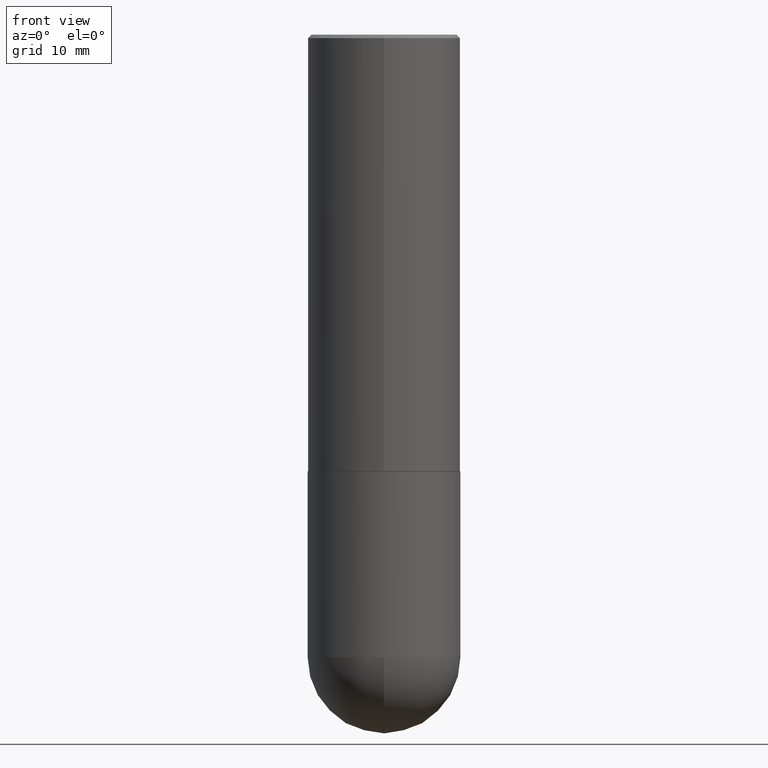
[diagram: clean part render]
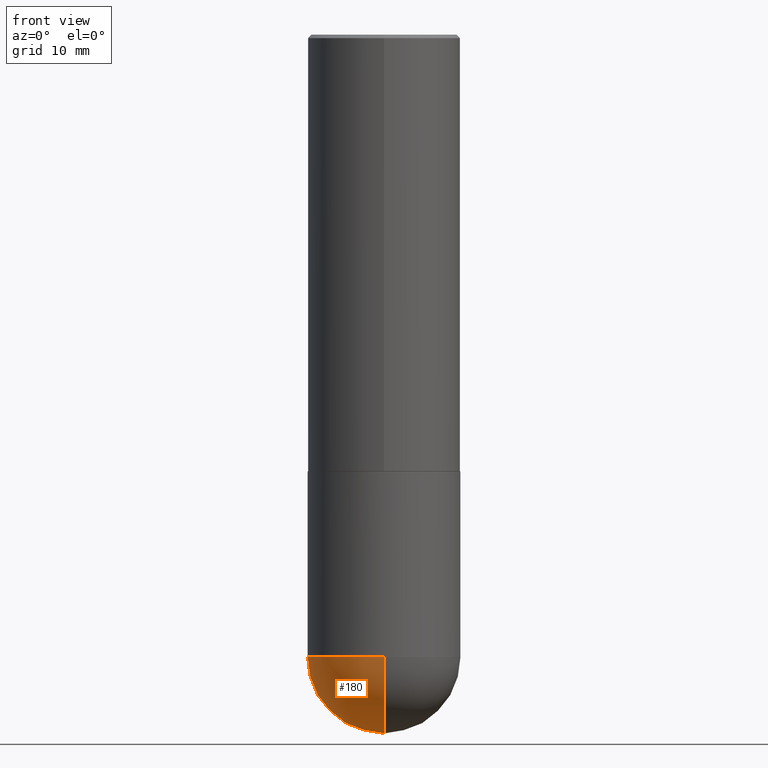
[diagram: same view with one face highlighted and labeled with its STEP entity id]
A machine part, front view. The second image highlights one B-rep face of the part: STEP entity #180.
In plain terms, the highlighted spherical surface has radius 11.1125 mm.
Its self-contained STEP definition (entity closure, byte-faithful):
#5 = EDGE_CURVE ( 'NONE', #383, #230, #282, .T. ) ;
#13 = CARTESIAN_POINT ( 'NONE',  ( 3.055046171487827277E-15, 0.4374999999999873435, -3.562500000000001776 ) ) ;
#17 = CIRCLE ( 'NONE', #56, 0.4374999999999998890 ) ;
#19 = DIRECTION ( 'NONE',  ( 6.982962677686265922E-15, 1.000000000000000000, -3.746534391310987979E-15 ) ) ;
#34 = ORIENTED_EDGE ( 'NONE', *, *, #57, .F. ) ;
#43 = AXIS2_PLACEMENT_3D ( 'NONE', #110, #231, #355 ) ;
#48 = DIRECTION ( 'NONE',  ( 1.000000000000000000, -6.982962677686265922E-15, 4.883557194083112340E-29 ) ) ;
#56 = AXIS2_PLACEMENT_3D ( 'NONE', #363, #172, #206 ) ;
#57 = EDGE_CURVE ( 'NONE', #66, #230, #174, .T. ) ;
#66 = VERTEX_POINT ( 'NONE', #168 ) ;
#70 = DIRECTION ( 'NONE',  ( -7.105427357601001070E-15, -1.000000000000000000, 0.000000000000000000 ) ) ;
#88 = EDGE_LOOP ( 'NONE', ( #292, #179, #34, #343 ) ) ;
#93 = AXIS2_PLACEMENT_3D ( 'NONE', #134, #335, #19 ) ;
#110 = CARTESIAN_POINT ( 'NONE',  ( 8.711982622034549126E-29, -1.243840226962870597E-14, -3.562500000000000000 ) ) ;
#134 = CARTESIAN_POINT ( 'NONE',  ( 8.380862844120662879E-29, -1.291258463776875784E-14, -3.562500000000000000 ) ) ;
#147 = CARTESIAN_POINT ( 'NONE',  ( 8.380862844120662879E-29, -1.291258463776875784E-14, -3.562500000000000000 ) ) ;
#168 = CARTESIAN_POINT ( 'NONE',  ( -0.4374999999999998890, -7.474928339417851874E-15, -3.562500000000000000 ) ) ;
#172 = DIRECTION ( 'NONE',  ( -2.445468806185136597E-29, 3.491481338843145583E-15, 1.000000000000000000 ) ) ;
#174 = CIRCLE ( 'NONE', #43, 0.4374999999999998890 ) ;
#177 = DIRECTION ( 'NONE',  ( 6.982962677686265922E-15, 1.000000000000000000, 0.000000000000000000 ) ) ;
#179 = ORIENTED_EDGE ( 'NONE', *, *, #5, .T. ) ;
#180 = ADVANCED_FACE ( 'NONE', ( #384 ), #304, .T. ) ;
#206 = DIRECTION ( 'NONE',  ( 1.000000000000000000, -6.982962677686265133E-15, 0.000000000000000000 ) ) ;
#209 = AXIS2_PLACEMENT_3D ( 'NONE', #147, #48, #177 ) ;
#211 = EDGE_CURVE ( 'NONE', #383, #341, #337, .T. ) ;
#230 = VERTEX_POINT ( 'NONE', #314 ) ;
#231 = DIRECTION ( 'NONE',  ( -2.445468806185136597E-29, 3.491481338843145583E-15, 1.000000000000000000 ) ) ;
#266 = DIRECTION ( 'NONE',  ( -1.000000000000000000, 7.105427357601001070E-15, -4.926315508542082329E-29 ) ) ;
#282 = CIRCLE ( 'NONE', #367, 0.4375000000000001665 ) ;
#292 = ORIENTED_EDGE ( 'NONE', *, *, #211, .F. ) ;
#304 = SPHERICAL_SURFACE ( 'NONE', #93, 0.4375000000000001665 ) ;
#305 = EDGE_CURVE ( 'NONE', #341, #66, #17, .T. ) ;
#314 = CARTESIAN_POINT ( 'NONE',  ( -3.108624468950352327E-15, -0.4375000000000127676, -3.562499999999998224 ) ) ;
#335 = DIRECTION ( 'NONE',  ( -1.000000000000000000, 6.982962677686265922E-15, -4.883557194083112340E-29 ) ) ;
#337 = CIRCLE ( 'NONE', #209, 0.4375000000000001665 ) ;
#341 = VERTEX_POINT ( 'NONE', #13 ) ;
#343 = ORIENTED_EDGE ( 'NONE', *, *, #305, .F. ) ;
#355 = DIRECTION ( 'NONE',  ( 1.000000000000000000, -6.982962677686265133E-15, 0.000000000000000000 ) ) ;
#363 = CARTESIAN_POINT ( 'NONE',  ( 8.711982622034549126E-29, -1.243840226962870597E-14, -3.562500000000000000 ) ) ;
#367 = AXIS2_PLACEMENT_3D ( 'NONE', #373, #266, #70 ) ;
#373 = CARTESIAN_POINT ( 'NONE',  ( 8.380862844120662879E-29, -1.291258463776875784E-14, -3.562500000000000000 ) ) ;
#383 = VERTEX_POINT ( 'NONE', #392 ) ;
#384 = FACE_OUTER_BOUND ( 'NONE', #88, .T. ) ;
#392 = CARTESIAN_POINT ( 'NONE',  ( 9.469462209402459055E-29, -1.441331857478128510E-14, -4.000000000000000000 ) ) ;